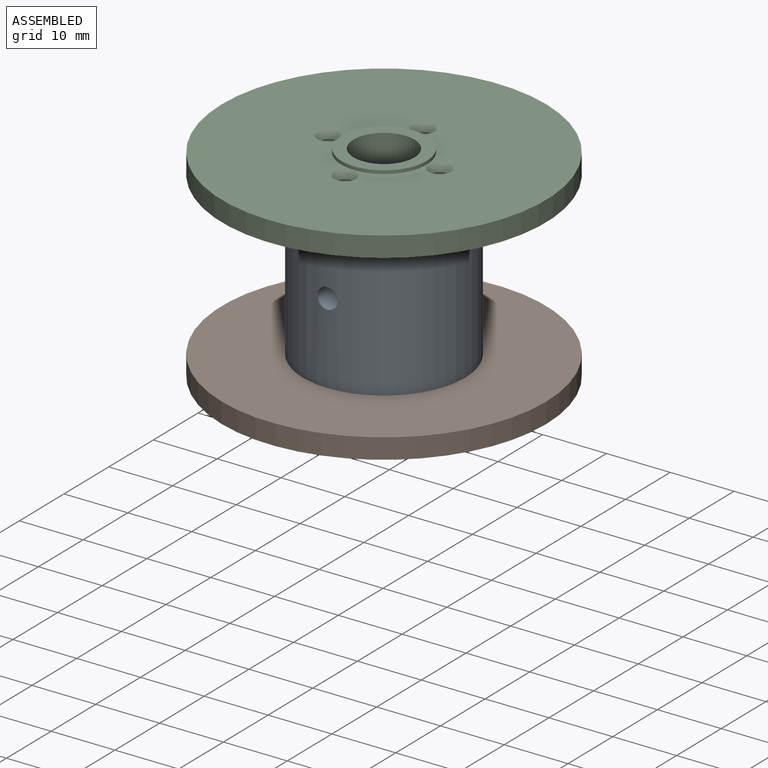
[diagram: assembled view]
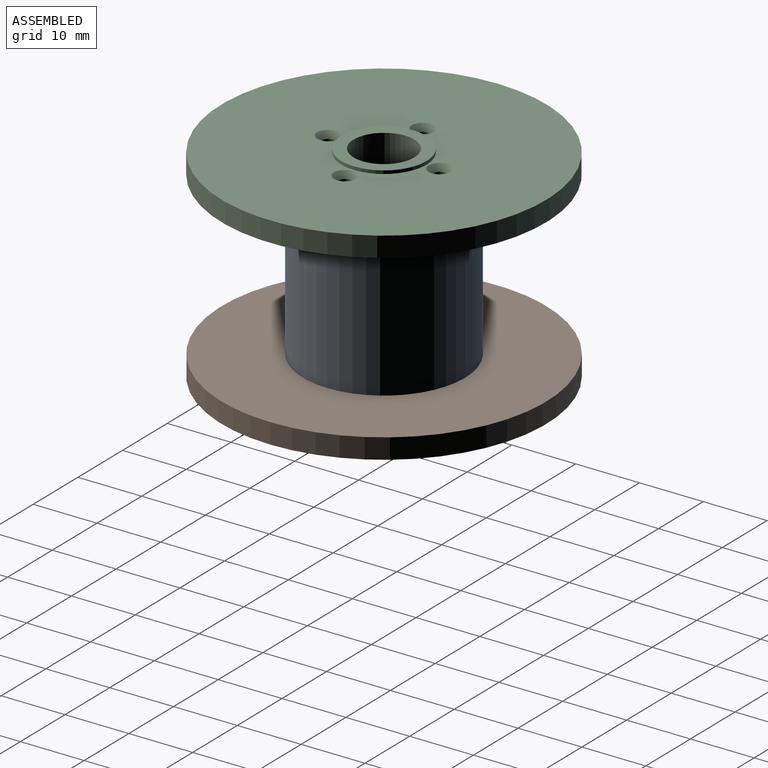
[diagram: assembled view, second angle]
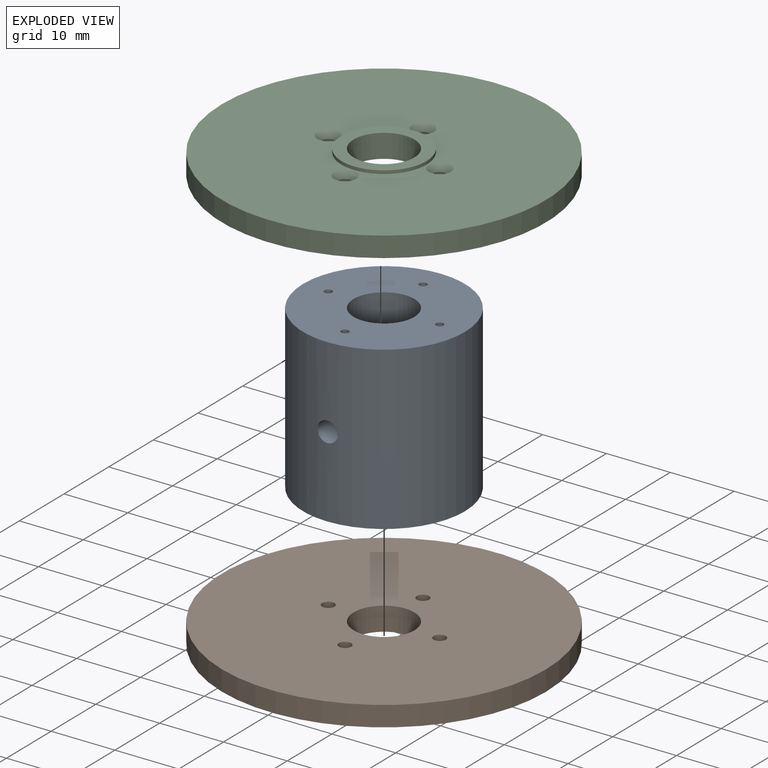
[diagram: exploded view]
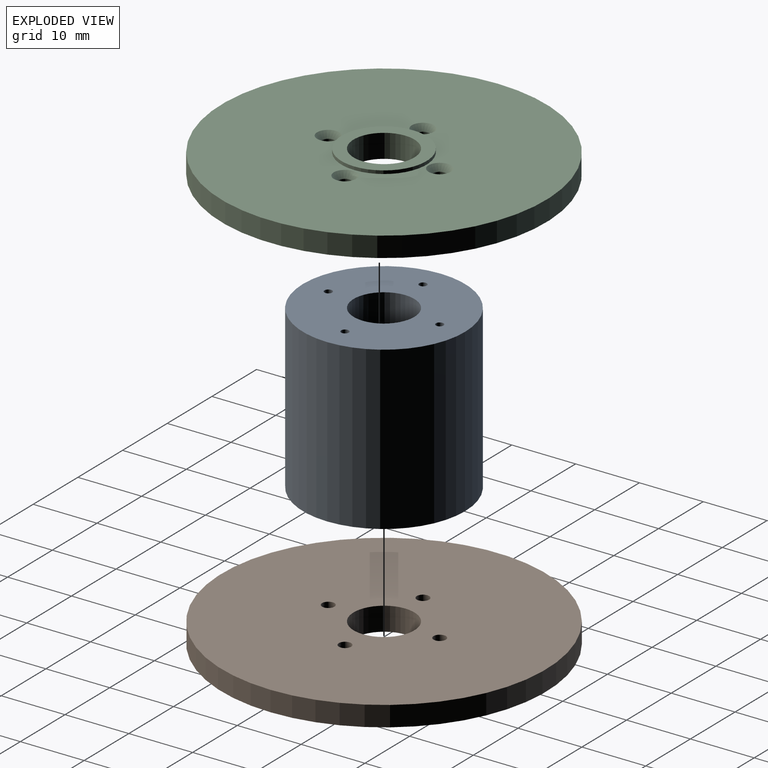
[diagram: exploded view, second angle]
ASSEMBLY  parts=3 mates=3
PART A: 21 faces, bbox 25.4x25.4x25.4 mm
  f0: cylinder r=4.76mm len=25.4mm, axis (0,0,-1), area 752mm2, adj f2,f3,f12
  f1: cylinder r=12.7mm len=25.4mm, axis (0,0,-1), area 2018.9mm2, adj f2,f3,f12
  f2: plane 25.4x25.4mm, normal (0,0,-1), area 431mm2, adj f0,f1,f4,f6,f8,f10
  f3: cylinder r=1.59mm len=8.21mm, axis (0,-1,0), area 80mm2, adj f0,f1
  f4: cylinder r=0.6mm len=7.3mm, axis (0,0,-1), area 27.3mm2, adj f2,f5
  f5: cone r=0mm half-angle=59deg, axis (0,0,-1), area 1.3mm2, adj f4
  f6: cylinder r=0.6mm len=7.3mm, axis (0,0,-1), area 27.3mm2, adj f2,f7
  f7: cone r=0mm half-angle=59deg, axis (0,0,-1), area 1.3mm2, adj f6
  f8: cylinder r=0.6mm len=7.3mm, axis (0,0,-1), area 27.3mm2, adj f2,f9
  f9: cone r=0mm half-angle=59deg, axis (0,0,-1), area 1.3mm2, adj f8
  f10: cylinder r=0.6mm len=7.3mm, axis (0,0,-1), area 27.3mm2, adj f2,f11
  f11: cone r=0mm half-angle=59deg, axis (0,0,-1), area 1.3mm2, adj f10
  f12: plane 25.4x25.4mm, normal (0,0,1), area 431mm2, adj f0,f1,f13,f15,f17,f19
  f13: cylinder r=0.6mm len=7.3mm, axis (0,0,1), area 27.3mm2, adj f12,f14
  f14: cone r=0mm half-angle=59deg, axis (0,0,1), area 1.3mm2, adj f13
  f15: cylinder r=0.6mm len=7.3mm, axis (0,0,1), area 27.3mm2, adj f12,f16
  f16: cone r=0mm half-angle=59deg, axis (0,0,1), area 1.3mm2, adj f15
  f17: cylinder r=0.6mm len=7.3mm, axis (0,0,1), area 27.3mm2, adj f12,f18
  f18: cone r=0mm half-angle=59deg, axis (0,0,1), area 1.3mm2, adj f17
  f19: cylinder r=0.6mm len=7.3mm, axis (0,0,1), area 27.3mm2, adj f12,f20
  f20: cone r=0mm half-angle=59deg, axis (0,0,1), area 1.3mm2, adj f19
PART B: 14 faces, bbox 50.8x50.8x3.7 mm
  f0: cylinder r=25.4mm len=50.8mm, axis (0,0,-1), area 506.7mm2, adj f2,f3
  f1: cylinder r=4.76mm len=9.53mm, axis (0,0,-1), area 110.2mm2, adj f2,f5
  f2: plane 50.8x50.8mm, normal (0,0,1), area 1943.9mm2, adj f0,f1,f6,f8,f10,f12
  f3: plane 50.8x50.8mm, normal (0,0,-1), area 1848.6mm2, adj f0,f4,f7,f9,f11,f13
  f4: cylinder r=6.67mm len=13.34mm, axis (0,0,1), area 21.3mm2, adj f3,f5
  f5: plane 13.34x13.34mm, normal (0,0,-1), area 68.4mm2, adj f1,f4
  f6: cylinder r=0.97mm len=2.27mm, axis (0,0,-1), area 13.8mm2, adj f2,f7
  f7: cone r=0.97mm half-angle=41deg, axis (0,0,-1), area 10.2mm2, adj f3,f6
  f8: cylinder r=0.97mm len=2.27mm, axis (0,0,-1), area 13.8mm2, adj f2,f9
  f9: cone r=0.97mm half-angle=41deg, axis (0,0,-1), area 10.2mm2, adj f3,f8
  f10: cylinder r=0.97mm len=2.27mm, axis (0,0,-1), area 13.8mm2, adj f2,f11
  f11: cone r=0.97mm half-angle=41deg, axis (0,0,-1), area 10.2mm2, adj f3,f10
  f12: cylinder r=0.97mm len=2.27mm, axis (0,0,-1), area 13.8mm2, adj f2,f13
  f13: cone r=0.97mm half-angle=41deg, axis (0,0,-1), area 10.2mm2, adj f3,f12
PART C: same geometry as B
PLACE A t=(100.02,-129.58,74.22)mm
PLACE B t=(100.02,-129.58,74.22)mm
PLACE C rot(axis=(0,1,0),180deg) t=(-436.3,-129.58,105.97)mm
MATE planar C.f0 <-> A.f0  axis (0,0,-1) through (-168.14,-46.71,102.79)mm
MATE cylindrical A.f0 <-> B.f0  axis (0,0,-1) through (-168.14,-46.71,77.39)mm
MATE cylindrical A.f0 <-> C.f0  axis (0,0,-1) through (-168.14,-46.71,102.79)mm
